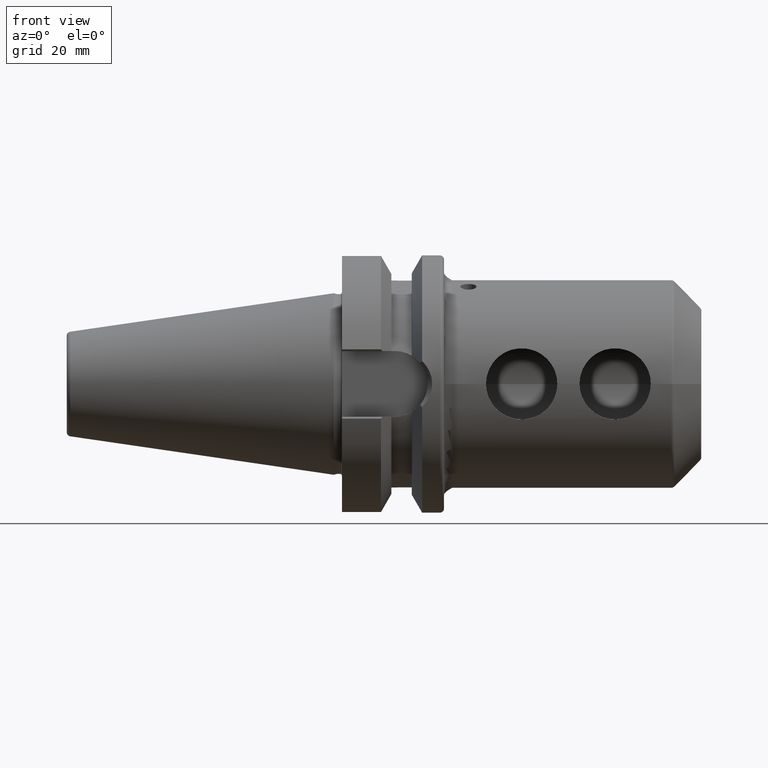
[diagram: clean part render]
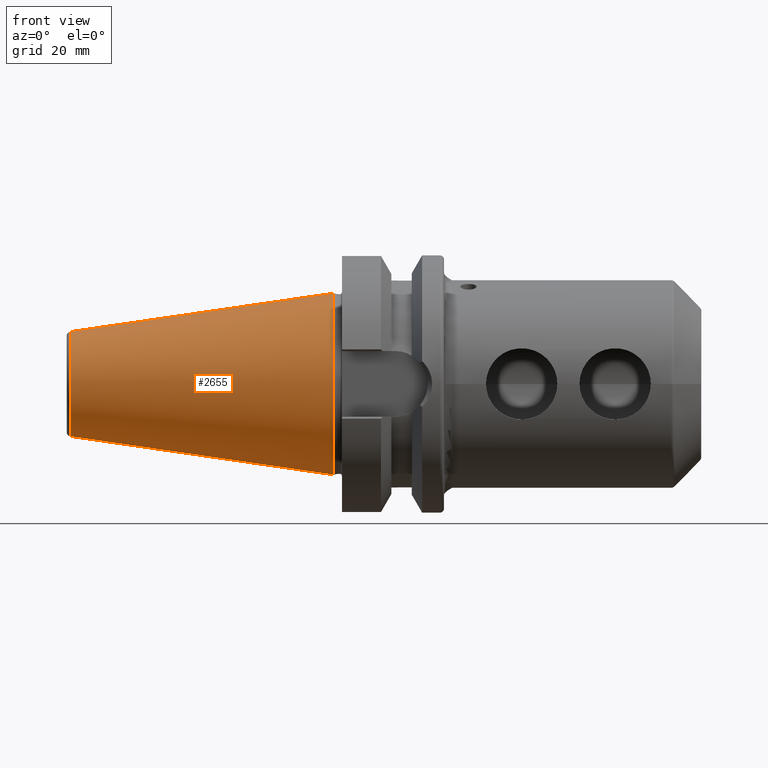
[diagram: same view with one face highlighted and labeled with its STEP entity id]
A machine part, front view. The second image highlights one B-rep face of the part: STEP entity #2655.
In plain terms, the highlighted conical surface has half-angle 8.297 deg.
Its self-contained STEP definition (entity closure, byte-faithful):
#20=CARTESIAN_POINT('',(4.547473508865E-13,0.E0,0.E0));
#21=DIRECTION('',(1.E0,0.E0,0.E0));
#22=DIRECTION('',(0.E0,0.E0,1.E0));
#23=AXIS2_PLACEMENT_3D('',#20,#21,#22);
#25=DIRECTION('',(-9.895329824990E-1,-2.390662347400E-10,1.443068832268E-1));
#26=VECTOR('',#25,6.522703944722E1);
#27=CARTESIAN_POINT('',(5.606857200746E-10,1.565092715213E-8,
-2.222499999985E1));
#28=LINE('',#27,#26);
#29=CARTESIAN_POINT('',(-6.454430688323E1,0.E0,0.E0));
#30=DIRECTION('',(-1.E0,0.E0,0.E0));
#31=DIRECTION('',(0.E0,0.E0,-1.E0));
#32=AXIS2_PLACEMENT_3D('',#29,#30,#31);
#34=DIRECTION('',(-9.895329824990E-1,2.390660335631E-10,-1.443068832268E-1));
#35=VECTOR('',#34,6.522703944722E1);
#36=CARTESIAN_POINT('',(5.606857200746E-10,-1.565091853005E-8,
2.222499999985E1));
#37=LINE('',#36,#35);
#2315=CARTESIAN_POINT('',(-6.454430688323E1,0.E0,1.281228923511E1));
#2316=CARTESIAN_POINT('',(-6.454430688323E1,0.E0,-1.281228923511E1));
#2317=VERTEX_POINT('',#2315);
#2318=VERTEX_POINT('',#2316);
#2319=CARTESIAN_POINT('',(4.547473508865E-13,0.E0,2.2225E1));
#2320=CARTESIAN_POINT('',(4.547473508865E-13,0.E0,-2.2225E1));
#2321=VERTEX_POINT('',#2319);
#2322=VERTEX_POINT('',#2320);
#2643=CARTESIAN_POINT('',(-3.227215344161E1,0.E0,0.E0));
#2644=DIRECTION('',(1.E0,0.E0,0.E0));
#2645=DIRECTION('',(0.E0,0.E0,1.E0));
#2646=AXIS2_PLACEMENT_3D('',#2643,#2644,#2645);
#2647=CONICAL_SURFACE('',#2646,1.751864461755E1,8.2971444E0);
#2648=ORIENTED_EDGE('',*,*,#2634,.T.);
#2649=ORIENTED_EDGE('',*,*,#2609,.T.);
#2651=ORIENTED_EDGE('',*,*,#2650,.T.);
#2652=ORIENTED_EDGE('',*,*,#2605,.F.);
#2653=EDGE_LOOP('',(#2648,#2649,#2651,#2652));
#2654=FACE_OUTER_BOUND('',#2653,.F.);
#2655=ADVANCED_FACE('',(#2654),#2647,.T.);
#24=CIRCLE('',#23,2.2225E1);
#33=CIRCLE('',#32,1.281228923511E1);
#2605=EDGE_CURVE('',#2321,#2317,#37,.T.);
#2609=EDGE_CURVE('',#2322,#2318,#28,.T.);
#2634=EDGE_CURVE('',#2321,#2322,#24,.T.);
#2650=EDGE_CURVE('',#2318,#2317,#33,.T.);